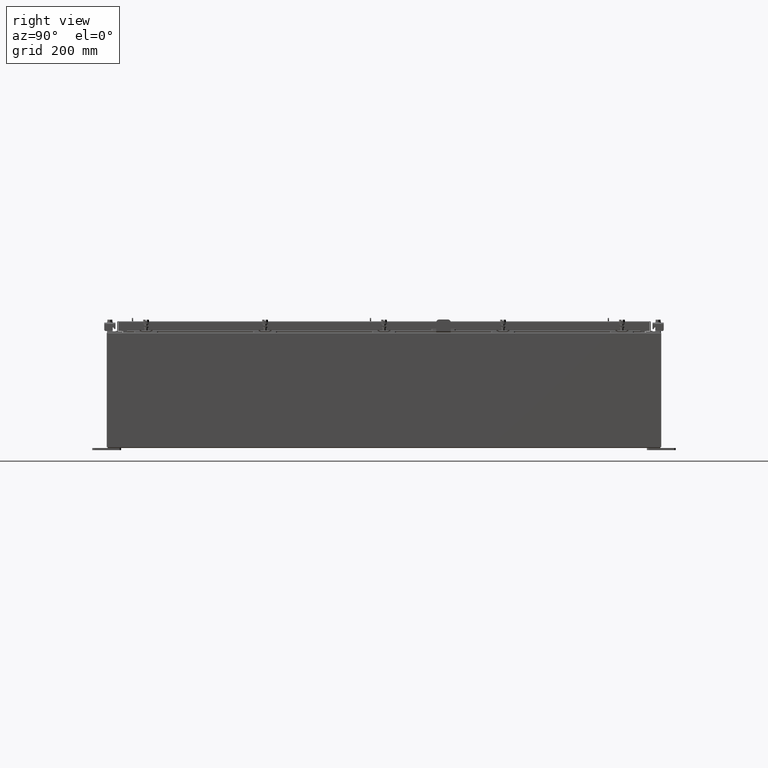
[diagram: clean part render]
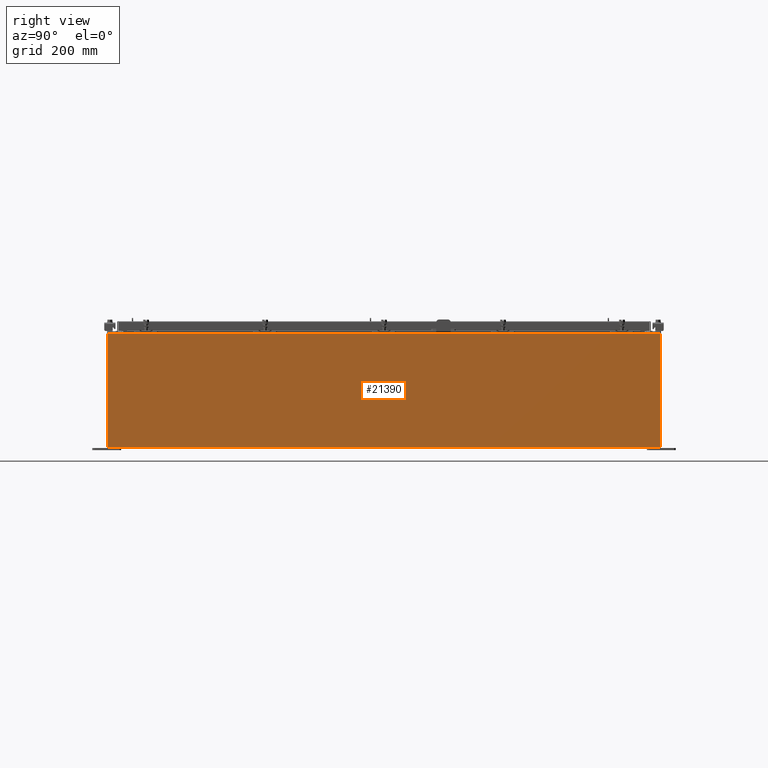
[diagram: same view with one face highlighted and labeled with its STEP entity id]
A machine part, right view. The second image highlights one B-rep face of the part: STEP entity #21390.
In plain terms, the highlighted planar face has unit normal (-1, 0, 0).
Its self-contained STEP definition (entity closure, byte-faithful):
#1813 = VERTEX_POINT ( 'NONE', #18884 ) ;
#1842 = VERTEX_POINT ( 'NONE', #6311 ) ;
#2438 = VECTOR ( 'NONE', #8979, 39.37007874015748100 ) ;
#4195 = EDGE_CURVE ( 'NONE', #1813, #4391, #13764, .T. ) ;
#4391 = VERTEX_POINT ( 'NONE', #15949 ) ;
#4586 = CARTESIAN_POINT ( 'NONE',  ( 17.99999999999999600, 23.92529999999998600, 0.01300000000000203200 ) ) ;
#4870 = CARTESIAN_POINT ( 'NONE',  ( 17.99999999999999600, 23.92529999999998900, -6.367630515150754200E-014 ) ) ;
#5361 = LINE ( 'NONE', #15894, #15996 ) ;
#5977 = CARTESIAN_POINT ( 'NONE',  ( 17.99999999999999600, 0.0000000000000000000, -6.367630515150754200E-014 ) ) ;
#6311 = CARTESIAN_POINT ( 'NONE',  ( 18.00000000000003200, 23.92529999999998600, 9.837599999999994800 ) ) ;
#7474 = ORIENTED_EDGE ( 'NONE', *, *, #27219, .F. ) ;
#8113 = DIRECTION ( 'NONE',  ( 3.523082860860887800E-015, 0.0000000000000000000, 1.000000000000000000 ) ) ;
#8482 = EDGE_CURVE ( 'NONE', #1842, #1813, #11120, .T. ) ;
#8632 = AXIS2_PLACEMENT_3D ( 'NONE', #5977, #20886, #8113 ) ;
#8979 = DIRECTION ( 'NONE',  ( -3.523082860860888200E-015, 0.0000000000000000000, -1.000000000000000000 ) ) ;
#9152 = DIRECTION ( 'NONE',  ( 3.523082860860888200E-015, 0.0000000000000000000, 1.000000000000000000 ) ) ;
#9619 = ORIENTED_EDGE ( 'NONE', *, *, #4195, .T. ) ;
#9638 = CARTESIAN_POINT ( 'NONE',  ( 18.00000000000003200, 23.92529999999998900, 9.837599999999994800 ) ) ;
#11120 = LINE ( 'NONE', #9638, #27434 ) ;
#11795 = DIRECTION ( 'NONE',  ( -0.0000000000000000000, -1.000000000000000000, -0.0000000000000000000 ) ) ;
#13273 = CARTESIAN_POINT ( 'NONE',  ( 17.99999999999999600, -23.92529999999998900, -6.367630515150754200E-014 ) ) ;
#13764 = LINE ( 'NONE', #13273, #2438 ) ;
#14165 = EDGE_LOOP ( 'NONE', ( #15667, #9619, #7474, #16092 ) ) ;
#14676 = VECTOR ( 'NONE', #9152, 39.37007874015748100 ) ;
#15667 = ORIENTED_EDGE ( 'NONE', *, *, #8482, .T. ) ;
#15894 = CARTESIAN_POINT ( 'NONE',  ( 17.99999999999999600, -23.92529999999998900, 0.01299999999999984700 ) ) ;
#15949 = CARTESIAN_POINT ( 'NONE',  ( 17.99999999999999600, -23.92529999999998900, 0.01299999999999897400 ) ) ;
#15996 = VECTOR ( 'NONE', #26619, 39.37007874015748100 ) ;
#16092 = ORIENTED_EDGE ( 'NONE', *, *, #17742, .T. ) ;
#17742 = EDGE_CURVE ( 'NONE', #19064, #1842, #21038, .T. ) ;
#18884 = CARTESIAN_POINT ( 'NONE',  ( 18.00000000000003200, -23.92529999999998900, 9.837600000000001900 ) ) ;
#19064 = VERTEX_POINT ( 'NONE', #4586 ) ;
#20886 = DIRECTION ( 'NONE',  ( -1.000000000000000000, 0.0000000000000000000, 3.523082860860887800E-015 ) ) ;
#21038 = LINE ( 'NONE', #4870, #14676 ) ;
#21390 = ADVANCED_FACE ( 'NONE', ( #23579 ), #25065, .F. ) ;
#23579 = FACE_OUTER_BOUND ( 'NONE', #14165, .T. ) ;
#25065 = PLANE ( 'NONE',  #8632 ) ;
#26619 = DIRECTION ( 'NONE',  ( -1.609096119163526300E-031, -1.000000000000000000, -4.567295697298285000E-017 ) ) ;
#27219 = EDGE_CURVE ( 'NONE', #19064, #4391, #5361, .T. ) ;
#27434 = VECTOR ( 'NONE', #11795, 39.37007874015748100 ) ;